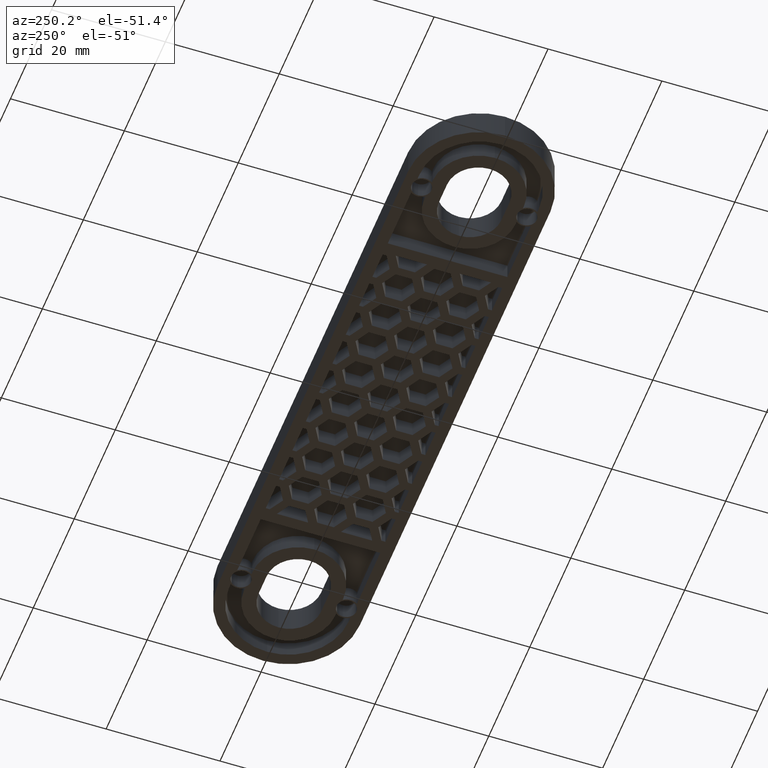
[diagram: clean part render]
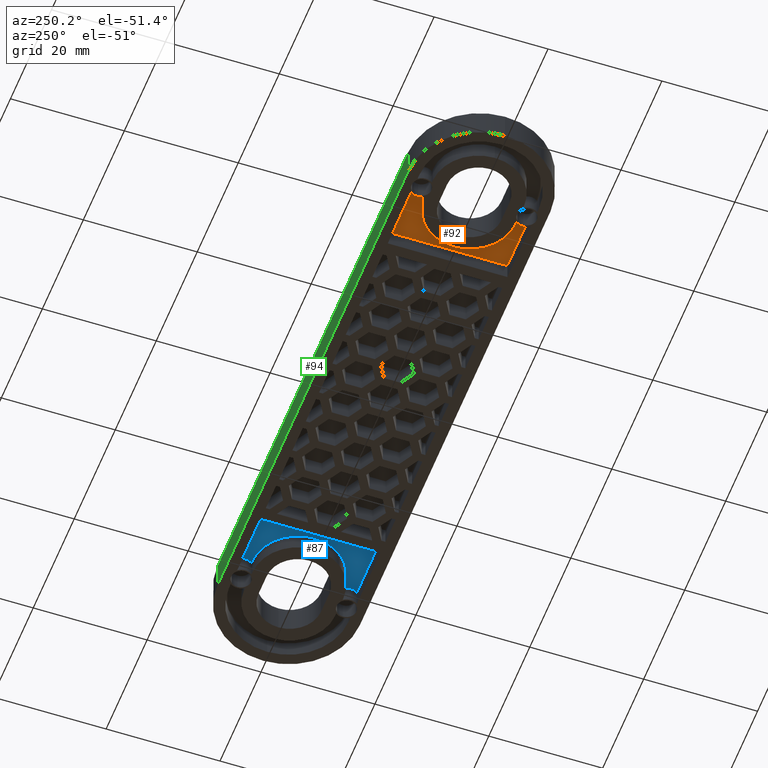
[diagram: same view with three faces highlighted in distinct colors, each labeled with its STEP entity id]
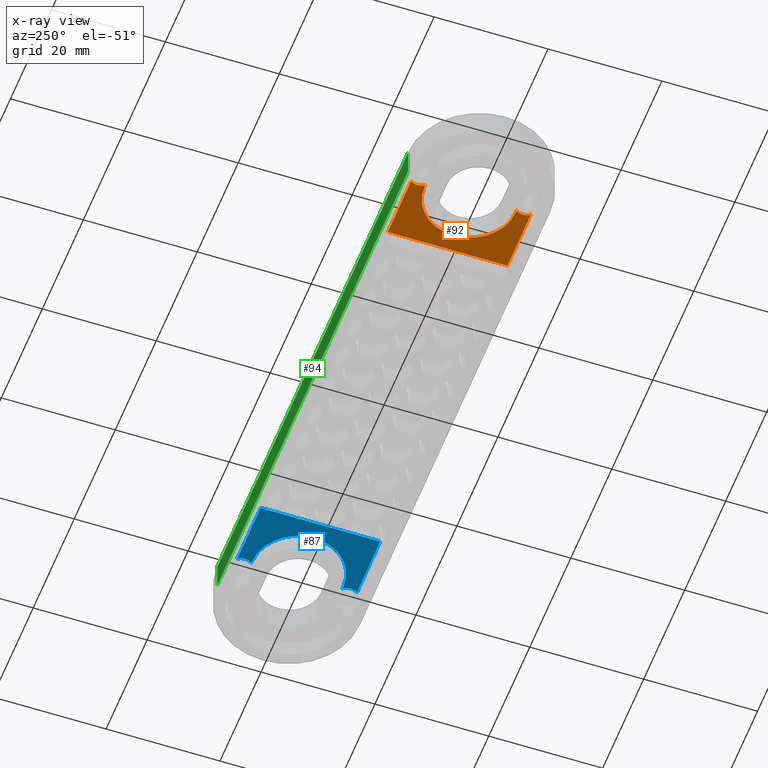
[diagram: x-ray of the same camera — body ghosted, the three highlighted faces saturated]
A machine part, auxiliary view with three faces highlighted in distinct colors.
The next image is the same camera in x-ray (body ghosted, the three faces saturated) — at least one of them is partly hidden behind the body in this view.
Their STEP definitions:

[orange] entity #92 — the highlighted planar face has unit normal (0, -0, -1).
#92 = ADVANCED_FACE( '', ( #589 ), #590, .T. );
#589 = FACE_OUTER_BOUND( '', #1481, .T. );
#590 = PLANE( '', #1482 );
#1481 = EDGE_LOOP( '', ( #2738, #2739, #2740, #2741, #2742, #2743, #2744, #2745, #2746 ) );
#1482 = AXIS2_PLACEMENT_3D( '', #2747, #2748, #2749 );
#2738 = ORIENTED_EDGE( '', *, *, #5961, .F. );
#2739 = ORIENTED_EDGE( '', *, *, #5962, .T. );
#2740 = ORIENTED_EDGE( '', *, *, #5963, .F. );
#2741 = ORIENTED_EDGE( '', *, *, #5644, .T. );
#2742 = ORIENTED_EDGE( '', *, *, #5964, .F. );
#2743 = ORIENTED_EDGE( '', *, *, #5965, .F. );
#2744 = ORIENTED_EDGE( '', *, *, #5966, .F. );
#2745 = ORIENTED_EDGE( '', *, *, #5967, .F. );
#2746 = ORIENTED_EDGE( '', *, *, #5968, .F. );
#2747 = CARTESIAN_POINT( '', ( 46.5000000000000, 1.83690953073357E-016, 3.00000000000000 ) );
#2748 = DIRECTION( '', ( 0.000000000000000, -6.12303176911189E-017, -1.00000000000000 ) );
#2749 = DIRECTION( '', ( 0.000000000000000, -1.00000000000000, 6.12303176911189E-017 ) );
#5644 = EDGE_CURVE( '', #6752, #6749, #6753, .T. );
#5961 = EDGE_CURVE( '', #7379, #7380, #7381, .T. );
#5962 = EDGE_CURVE( '', #7379, #7382, #7383, .T. );
#5963 = EDGE_CURVE( '', #6752, #7382, #7384, .T. );
#5964 = EDGE_CURVE( '', #7385, #6749, #7386, .T. );
#5965 = EDGE_CURVE( '', #7387, #7385, #7388, .T. );
#5966 = EDGE_CURVE( '', #7389, #7387, #7390, .T. );
#5967 = EDGE_CURVE( '', #7391, #7389, #7392, .T. );
#5968 = EDGE_CURVE( '', #7380, #7391, #7393, .T. );
#6749 = VERTEX_POINT( '', #8524 );
#6752 = VERTEX_POINT( '', #8528 );
#6753 = LINE( '', #8529, #8530 );
#7379 = VERTEX_POINT( '', #9439 );
#7380 = VERTEX_POINT( '', #9440 );
#7381 = CIRCLE( '', #9441, 2.00000000000000 );
#7382 = VERTEX_POINT( '', #9442 );
#7383 = LINE( '', #9443, #9444 );
#7384 = LINE( '', #9445, #9446 );
#7385 = VERTEX_POINT( '', #9447 );
#7386 = CIRCLE( '', #9448, 2.00000000000000 );
#7387 = VERTEX_POINT( '', #9449 );
#7388 = LINE( '', #9450, #9451 );
#7389 = VERTEX_POINT( '', #9452 );
#7390 = CIRCLE( '', #9453, 7.99999999999999 );
#7391 = VERTEX_POINT( '', #9454 );
#7392 = CIRCLE( '', #9455, 8.00000000000000 );
#7393 = LINE( '', #9456, #9457 );
#8524 = CARTESIAN_POINT( '', ( -42.4387505004004, -10.5000000000000, 3.00000000000000 ) );
#8528 = CARTESIAN_POINT( '', ( -31.0000000000000, -10.5000000000000, 3.00000000000000 ) );
#8529 = CARTESIAN_POINT( '', ( 46.5000000000000, -10.5000000000000, 3.00000000000000 ) );
#8530 = VECTOR( '', #11132, 1000.00000000000 );
#9439 = CARTESIAN_POINT( '', ( -42.4387505004004, 10.5000000000000, 3.00000000000000 ) );
#9440 = CARTESIAN_POINT( '', ( -42.4387505004004, 8.00000000000000, 3.00000000000000 ) );
#9441 = AXIS2_PLACEMENT_3D( '', #11515, #11516, #11517 );
#9442 = CARTESIAN_POINT( '', ( -31.0000000000000, 10.5000000000000, 3.00000000000000 ) );
#9443 = CARTESIAN_POINT( '', ( -46.5000000000000, 10.5000000000000, 3.00000000000000 ) );
#9444 = VECTOR( '', #11518, 1000.00000000000 );
#9445 = CARTESIAN_POINT( '', ( -31.0000000000000, -10.5000000000000, 3.00000000000000 ) );
#9446 = VECTOR( '', #11519, 1000.00000000000 );
#9447 = CARTESIAN_POINT( '', ( -42.4387505004004, -8.00000000000000, 3.00000000000000 ) );
#9448 = AXIS2_PLACEMENT_3D( '', #11520, #11521, #11522 );
#9449 = CARTESIAN_POINT( '', ( -42.0000000000000, -8.00000000000000, 3.00000000000000 ) );
#9450 = CARTESIAN_POINT( '', ( 46.5000000000000, -7.99999999999999, 3.00000000000000 ) );
#9451 = VECTOR( '', #11523, 1000.00000000000 );
#9452 = CARTESIAN_POINT( '', ( -34.0000000000000, 1.05920318089342E-014, 3.00000000000000 ) );
#9453 = AXIS2_PLACEMENT_3D( '', #11524, #11525, #11526 );
#9454 = CARTESIAN_POINT( '', ( -42.0000000000000, 8.00000000000000, 3.00000000000000 ) );
#9455 = AXIS2_PLACEMENT_3D( '', #11527, #11528, #11529 );
#9456 = CARTESIAN_POINT( '', ( 46.5000000000000, 8.00000000000001, 3.00000000000000 ) );
#9457 = VECTOR( '', #11530, 1000.00000000000 );
#11132 = DIRECTION( '', ( -1.00000000000000, 0.000000000000000, 0.000000000000000 ) );
#11515 = CARTESIAN_POINT( '', ( -44.0000000000000, 9.25000000000000, 3.00000000000000 ) );
#11516 = DIRECTION( '', ( -2.18952885050752E-047, -6.12303176911189E-017, -1.00000000000000 ) );
#11517 = DIRECTION( '', ( 1.00000000000000, -1.67349315828569E-015, 1.02468517735746E-031 ) );
#11518 = DIRECTION( '', ( 1.00000000000000, 0.000000000000000, 0.000000000000000 ) );
#11519 = DIRECTION( '', ( 0.000000000000000, 1.00000000000000, -6.12303176911189E-017 ) );
#11520 = CARTESIAN_POINT( '', ( -44.0000000000000, -9.25000000000000, 3.00000000000000 ) );
#11521 = DIRECTION( '', ( 0.000000000000000, -6.12303176911189E-017, -1.00000000000000 ) );
#11522 = DIRECTION( '', ( 1.00000000000000, -8.06131420297284E-016, 4.93596829655956E-032 ) );
#11523 = DIRECTION( '', ( -1.00000000000000, -1.15648231731787E-016, 7.08117796935346E-033 ) );
#11524 = CARTESIAN_POINT( '', ( -42.0000000000000, 1.83690953073357E-016, 3.00000000000000 ) );
#11525 = DIRECTION( '', ( 0.000000000000000, -6.12303176911189E-017, -1.00000000000000 ) );
#11526 = DIRECTION( '', ( 0.000000000000000, 1.00000000000000, -6.12303176911189E-017 ) );
#11527 = CARTESIAN_POINT( '', ( -42.0000000000000, 5.38786138100378E-015, 3.00000000000000 ) );
#11528 = DIRECTION( '', ( 0.000000000000000, -6.12303176911189E-017, -1.00000000000000 ) );
#11529 = DIRECTION( '', ( 0.000000000000000, 1.00000000000000, -6.12303176911189E-017 ) );
#11530 = DIRECTION( '', ( 1.00000000000000, 1.15648231731787E-016, -7.08117796935346E-033 ) );

[blue] entity #87 — the highlighted planar face has unit normal (0, -0, -1).
#87 = ADVANCED_FACE( '', ( #522 ), #523, .T. );
#522 = FACE_OUTER_BOUND( '', #1414, .T. );
#523 = PLANE( '', #1415 );
#1414 = EDGE_LOOP( '', ( #2386, #2387, #2388, #2389, #2390, #2391, #2392, #2393, #2394 ) );
#1415 = AXIS2_PLACEMENT_3D( '', #2395, #2396, #2397 );
#2386 = ORIENTED_EDGE( '', *, *, #5634, .F. );
#2387 = ORIENTED_EDGE( '', *, *, #5635, .T. );
#2388 = ORIENTED_EDGE( '', *, *, #5636, .F. );
#2389 = ORIENTED_EDGE( '', *, *, #5637, .T. );
#2390 = ORIENTED_EDGE( '', *, *, #5638, .F. );
#2391 = ORIENTED_EDGE( '', *, *, #5639, .F. );
#2392 = ORIENTED_EDGE( '', *, *, #5640, .F. );
#2393 = ORIENTED_EDGE( '', *, *, #5641, .F. );
#2394 = ORIENTED_EDGE( '', *, *, #5642, .F. );
#2395 = CARTESIAN_POINT( '', ( 46.5000000000000, 1.83690953073357E-016, 3.00000000000000 ) );
#2396 = DIRECTION( '', ( 0.000000000000000, -6.12303176911189E-017, -1.00000000000000 ) );
#2397 = DIRECTION( '', ( 0.000000000000000, -1.00000000000000, 6.12303176911189E-017 ) );
#5634 = EDGE_CURVE( '', #6731, #6732, #6733, .T. );
#5635 = EDGE_CURVE( '', #6731, #6734, #6735, .T. );
#5636 = EDGE_CURVE( '', #6736, #6734, #6737, .T. );
#5637 = EDGE_CURVE( '', #6736, #6738, #6739, .T. );
#5638 = EDGE_CURVE( '', #6740, #6738, #6741, .T. );
#5639 = EDGE_CURVE( '', #6742, #6740, #6743, .T. );
#5640 = EDGE_CURVE( '', #6744, #6742, #6745, .T. );
#5641 = EDGE_CURVE( '', #6746, #6744, #6747, .T. );
#5642 = EDGE_CURVE( '', #6732, #6746, #6748, .T. );
#6731 = VERTEX_POINT( '', #8501 );
#6732 = VERTEX_POINT( '', #8502 );
#6733 = CIRCLE( '', #8503, 2.00000000000000 );
#6734 = VERTEX_POINT( '', #8504 );
#6735 = LINE( '', #8505, #8506 );
#6736 = VERTEX_POINT( '', #8507 );
#6737 = LINE( '', #8508, #8509 );
#6738 = VERTEX_POINT( '', #8510 );
#6739 = LINE( '', #8511, #8512 );
#6740 = VERTEX_POINT( '', #8513 );
#6741 = CIRCLE( '', #8514, 2.00000000000000 );
#6742 = VERTEX_POINT( '', #8515 );
#6743 = LINE( '', #8516, #8517 );
#6744 = VERTEX_POINT( '', #8518 );
#6745 = CIRCLE( '', #8519, 8.00000000000000 );
#6746 = VERTEX_POINT( '', #8520 );
#6747 = CIRCLE( '', #8521, 8.00000000000000 );
#6748 = LINE( '', #8522, #8523 );
#8501 = CARTESIAN_POINT( '', ( 42.4387505004004, -10.5000000000000, 3.00000000000000 ) );
#8502 = CARTESIAN_POINT( '', ( 42.4387505004004, -8.00000000000000, 3.00000000000000 ) );
#8503 = AXIS2_PLACEMENT_3D( '', #11114, #11115, #11116 );
#8504 = CARTESIAN_POINT( '', ( 31.0000000000000, -10.5000000000000, 3.00000000000000 ) );
#8505 = CARTESIAN_POINT( '', ( 46.5000000000000, -10.5000000000000, 3.00000000000000 ) );
#8506 = VECTOR( '', #11117, 1000.00000000000 );
#8507 = CARTESIAN_POINT( '', ( 31.0000000000000, 10.5000000000000, 3.00000000000000 ) );
#8508 = CARTESIAN_POINT( '', ( 31.0000000000000, 10.5000000000000, 3.00000000000000 ) );
#8509 = VECTOR( '', #11118, 1000.00000000000 );
#8510 = CARTESIAN_POINT( '', ( 42.4387505004004, 10.5000000000000, 3.00000000000000 ) );
#8511 = CARTESIAN_POINT( '', ( -46.5000000000000, 10.5000000000000, 3.00000000000000 ) );
#8512 = VECTOR( '', #11119, 1000.00000000000 );
#8513 = CARTESIAN_POINT( '', ( 42.4387505004004, 8.00000000000000, 3.00000000000000 ) );
#8514 = AXIS2_PLACEMENT_3D( '', #11120, #11121, #11122 );
#8515 = CARTESIAN_POINT( '', ( 42.0000000000000, 8.00000000000000, 3.00000000000000 ) );
#8516 = CARTESIAN_POINT( '', ( 46.5000000000000, 8.00000000000000, 3.00000000000000 ) );
#8517 = VECTOR( '', #11123, 1000.00000000000 );
#8518 = CARTESIAN_POINT( '', ( 34.0000000000000, 3.65313790502697E-015, 3.00000000000000 ) );
#8519 = AXIS2_PLACEMENT_3D( '', #11124, #11125, #11126 );
#8520 = CARTESIAN_POINT( '', ( 42.0000000000000, -8.00000000000000, 3.00000000000000 ) );
#8521 = AXIS2_PLACEMENT_3D( '', #11127, #11128, #11129 );
#8522 = CARTESIAN_POINT( '', ( 46.5000000000000, -8.00000000000000, 3.00000000000000 ) );
#8523 = VECTOR( '', #11130, 1000.00000000000 );
#11114 = CARTESIAN_POINT( '', ( 44.0000000000000, -9.25000000000000, 3.00000000000000 ) );
#11115 = DIRECTION( '', ( 6.84227765783601E-049, -6.12303176911189E-017, -1.00000000000000 ) );
#11116 = DIRECTION( '', ( 1.00000000000000, 6.12303176911189E-017, -3.74915180455534E-033 ) );
#11117 = DIRECTION( '', ( -1.00000000000000, 0.000000000000000, 0.000000000000000 ) );
#11118 = DIRECTION( '', ( -8.67361737988403E-016, -1.00000000000000, 6.12303176911189E-017 ) );
#11119 = DIRECTION( '', ( 1.00000000000000, 0.000000000000000, 0.000000000000000 ) );
#11120 = CARTESIAN_POINT( '', ( 44.0000000000000, 9.25000000000000, 3.00000000000000 ) );
#11121 = DIRECTION( '', ( 6.84227765783601E-049, -6.12303176911189E-017, -1.00000000000000 ) );
#11122 = DIRECTION( '', ( 1.00000000000000, 6.12303176911189E-017, -3.74915180455534E-033 ) );
#11123 = DIRECTION( '', ( 1.00000000000000, 5.78241158658936E-017, -3.54058898467673E-033 ) );
#11124 = CARTESIAN_POINT( '', ( 42.0000000000000, 1.91841442905016E-015, 3.00000000000000 ) );
#11125 = DIRECTION( '', ( 0.000000000000000, -6.12303176911189E-017, -1.00000000000000 ) );
#11126 = DIRECTION( '', ( 0.000000000000000, 1.00000000000000, -6.12303176911189E-017 ) );
#11127 = CARTESIAN_POINT( '', ( 42.0000000000000, 1.91841442905016E-015, 3.00000000000000 ) );
#11128 = DIRECTION( '', ( 0.000000000000000, -6.12303176911189E-017, -1.00000000000000 ) );
#11129 = DIRECTION( '', ( 0.000000000000000, 1.00000000000000, -6.12303176911189E-017 ) );
#11130 = DIRECTION( '', ( -1.00000000000000, -5.78241158658936E-017, 3.54058898467673E-033 ) );

[green] entity #94 — the highlighted planar face has unit normal (0, -1, 0).
#94 = ADVANCED_FACE( '', ( #593 ), #594, .F. );
#593 = FACE_OUTER_BOUND( '', #1485, .T. );
#594 = PLANE( '', #1486 );
#1485 = EDGE_LOOP( '', ( #2757, #2758, #2759, #2760 ) );
#1486 = AXIS2_PLACEMENT_3D( '', #2761, #2762, #2763 );
#2757 = ORIENTED_EDGE( '', *, *, #5583, .T. );
#2758 = ORIENTED_EDGE( '', *, *, #5969, .F. );
#2759 = ORIENTED_EDGE( '', *, *, #5797, .F. );
#2760 = ORIENTED_EDGE( '', *, *, #5970, .T. );
#2761 = CARTESIAN_POINT( '', ( -46.5000000000000, 12.5000000000000, -7.65378971138986E-016 ) );
#2762 = DIRECTION( '', ( 0.000000000000000, -1.00000000000000, 6.12303176911189E-017 ) );
#2763 = DIRECTION( '', ( -1.00000000000000, 0.000000000000000, 0.000000000000000 ) );
#5583 = EDGE_CURVE( '', #6635, #6633, #6636, .T. );
#5797 = EDGE_CURVE( '', #7050, #7052, #7053, .T. );
#5969 = EDGE_CURVE( '', #7052, #6633, #7394, .T. );
#5970 = EDGE_CURVE( '', #7050, #6635, #7395, .T. );
#6633 = VERTEX_POINT( '', #8370 );
#6635 = VERTEX_POINT( '', #8372 );
#6636 = LINE( '', #8373, #8374 );
#7050 = VERTEX_POINT( '', #8955 );
#7052 = VERTEX_POINT( '', #8957 );
#7053 = LINE( '', #8958, #8959 );
#7394 = LINE( '', #9458, #9459 );
#7395 = LINE( '', #9460, #9461 );
#8370 = CARTESIAN_POINT( '', ( 46.5000000000000, 12.5000000000000, 5.00000000000000 ) );
#8372 = CARTESIAN_POINT( '', ( -46.5000000000000, 12.5000000000000, 5.00000000000000 ) );
#8373 = CARTESIAN_POINT( '', ( -46.5000000000000, 12.5000000000000, 5.00000000000000 ) );
#8374 = VECTOR( '', #11027, 1000.00000000000 );
#8955 = CARTESIAN_POINT( '', ( -46.5000000000000, 12.5000000000000, -7.65378971138986E-016 ) );
#8957 = CARTESIAN_POINT( '', ( 46.5000000000000, 12.5000000000000, -7.65378971138986E-016 ) );
#8958 = CARTESIAN_POINT( '', ( -46.5000000000000, 12.5000000000000, -7.65378971138986E-016 ) );
#8959 = VECTOR( '', #11333, 1000.00000000000 );
#9458 = CARTESIAN_POINT( '', ( 46.5000000000000, 12.5000000000000, -7.65378971138986E-016 ) );
#9459 = VECTOR( '', #11531, 1000.00000000000 );
#9460 = CARTESIAN_POINT( '', ( -46.5000000000000, 12.5000000000000, -7.65378971138986E-016 ) );
#9461 = VECTOR( '', #11532, 1000.00000000000 );
#11027 = DIRECTION( '', ( 1.00000000000000, 0.000000000000000, 0.000000000000000 ) );
#11333 = DIRECTION( '', ( 1.00000000000000, 0.000000000000000, 0.000000000000000 ) );
#11531 = DIRECTION( '', ( 0.000000000000000, 6.12303176911189E-017, 1.00000000000000 ) );
#11532 = DIRECTION( '', ( 0.000000000000000, 6.12303176911189E-017, 1.00000000000000 ) );